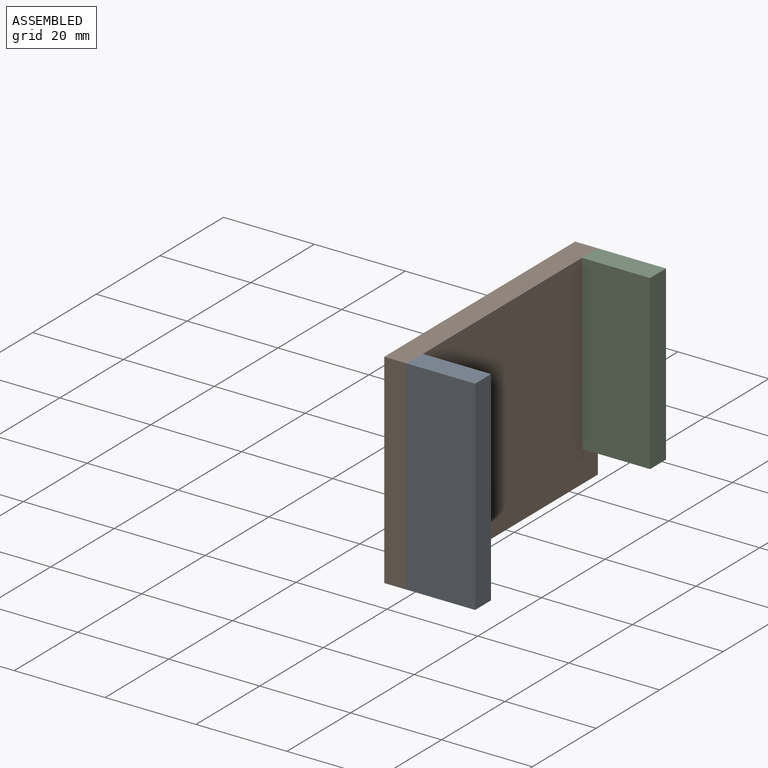
[diagram: assembled view]
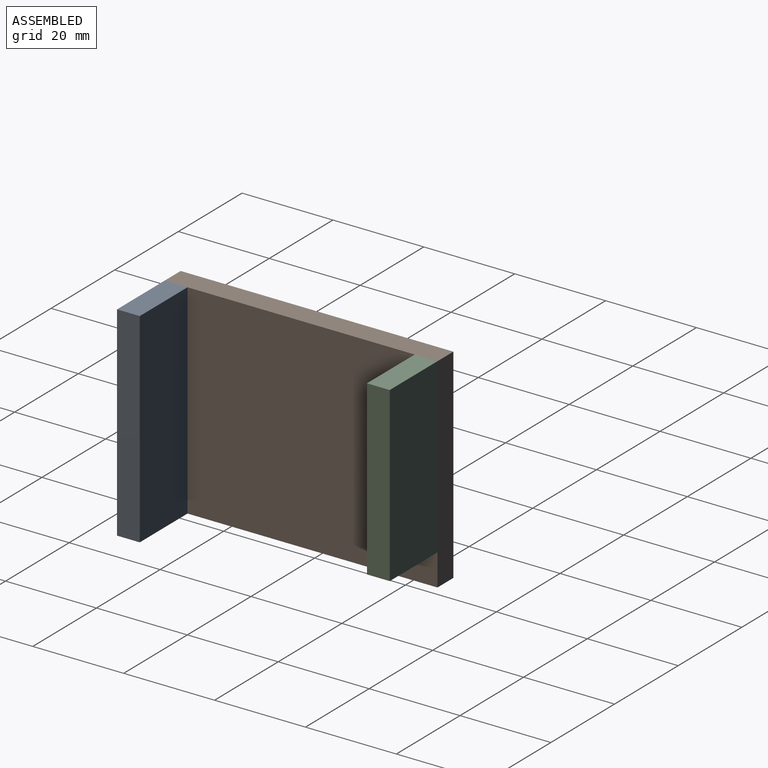
[diagram: assembled view, second angle]
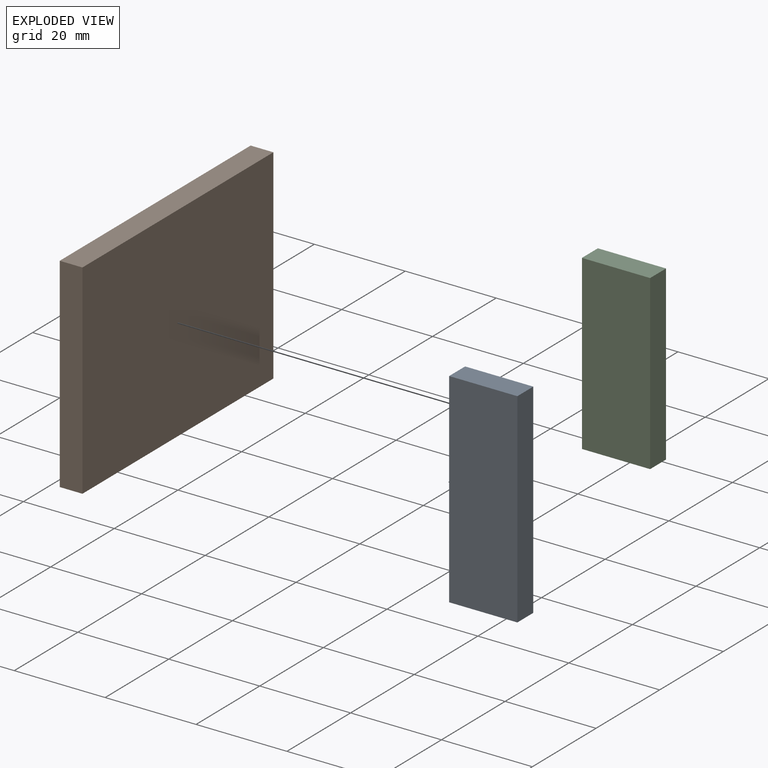
[diagram: exploded view]
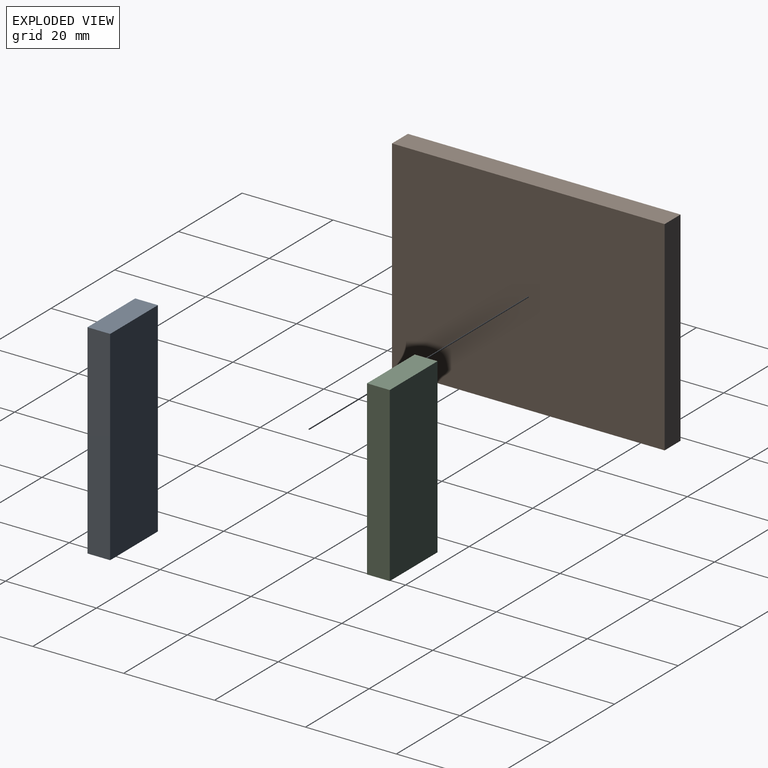
[diagram: exploded view, second angle]
ASSEMBLY  parts=3 mates=2
PART A: 6 faces, bbox 15x5x45 mm
  f0: plane 15x5mm, normal (0,0,1), area 75mm2, adj f1,f3,f4,f5
  f1: plane 45x5mm, normal (-1,0,0), area 225mm2, adj f0,f2,f4,f5
  f2: plane 15x5mm, normal (0,0,-1), area 75mm2, adj f1,f3,f4,f5
  f3: plane 45x5mm, normal (1,0,0), area 225mm2, adj f0,f2,f4,f5
  f4: plane 45x15mm, normal (0,-1,0), area 675mm2, adj f0,f1,f2,f3
  f5: plane 45x15mm, normal (0,1,0), area 675mm2, adj f0,f1,f2,f3
PART B: 6 faces, bbox 5x60x45 mm
  f0: plane 60x5mm, normal (0,0,1), area 300mm2, adj f1,f3,f4,f5
  f1: plane 60x45mm, normal (-1,0,0), area 2700mm2, adj f0,f2,f4,f5
  f2: plane 60x5mm, normal (0,0,-1), area 300mm2, adj f1,f3,f4,f5
  f3: plane 60x45mm, normal (1,0,0), area 2700mm2, adj f0,f2,f4,f5
  f4: plane 45x5mm, normal (0,-1,0), area 225mm2, adj f0,f1,f2,f3
  f5: plane 45x5mm, normal (0,1,0), area 225mm2, adj f0,f1,f2,f3
PART C: 6 faces, bbox 15x38x5 mm
  f0: plane 15x5mm, normal (0,1,0), area 75mm2, adj f1,f3,f4,f5
  f1: plane 38x5mm, normal (-1,0,0), area 190mm2, adj f0,f2,f4,f5
  f2: plane 15x5mm, normal (0,-1,0), area 75mm2, adj f1,f3,f4,f5
  f3: plane 38x5mm, normal (1,0,0), area 190mm2, adj f0,f2,f4,f5
  f4: plane 38x15mm, normal (0,0,1), area 570mm2, adj f0,f1,f2,f3
  f5: plane 38x15mm, normal (0,0,-1), area 570mm2, adj f0,f1,f2,f3
PLACE A t=(13.61,-48.21,-34.2)mm
PLACE B t=(-12.6,6.79,-3.73)mm
PLACE C rot(axis=(1,0,0),90deg) t=(-14.3,6.79,-55.25)mm
MATE fastened A.f1 <-> B.f3  axis (-1,0,0) through (-20.36,-53.21,14.97)mm
MATE fastened C.f1 <-> B.f3  axis (-1,0,0) through (-20.36,6.79,14.97)mm
